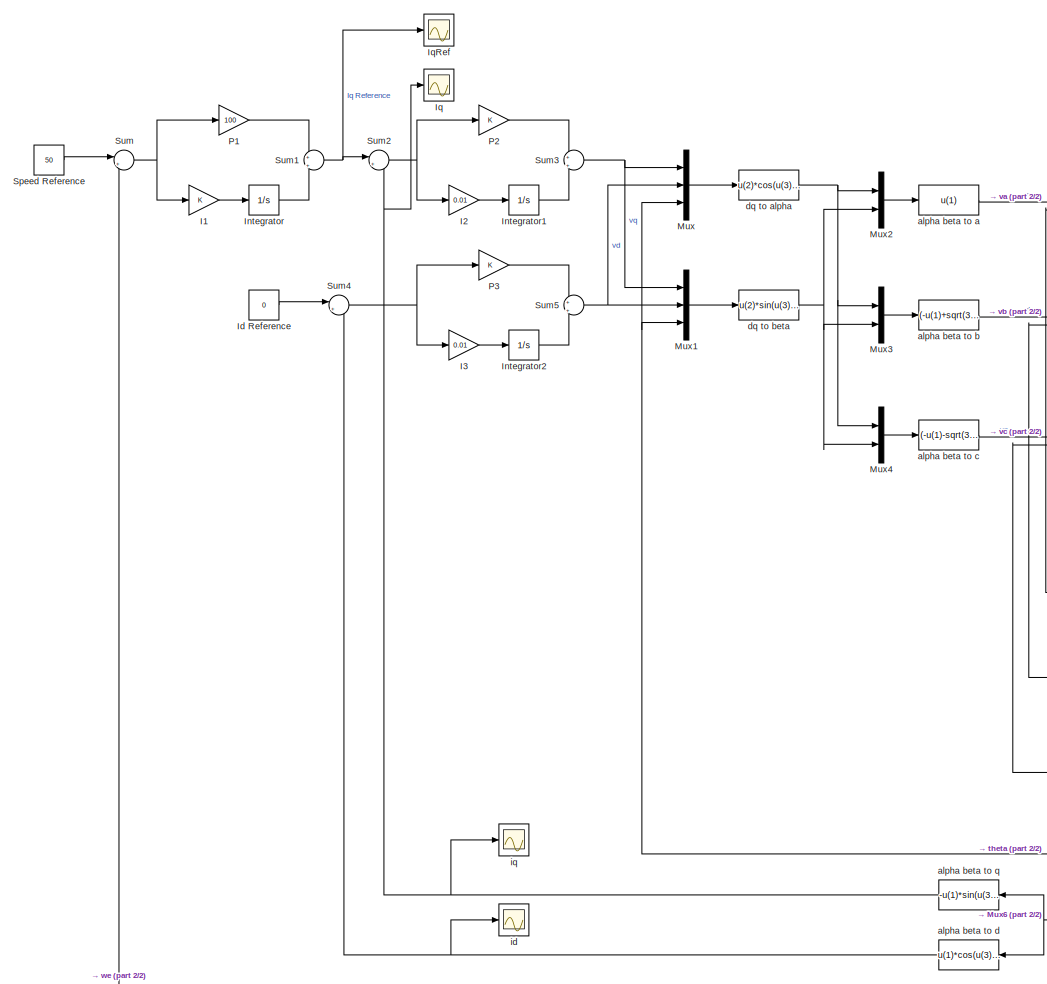
[diagram: root canvas - part 1/2, left side, full height]
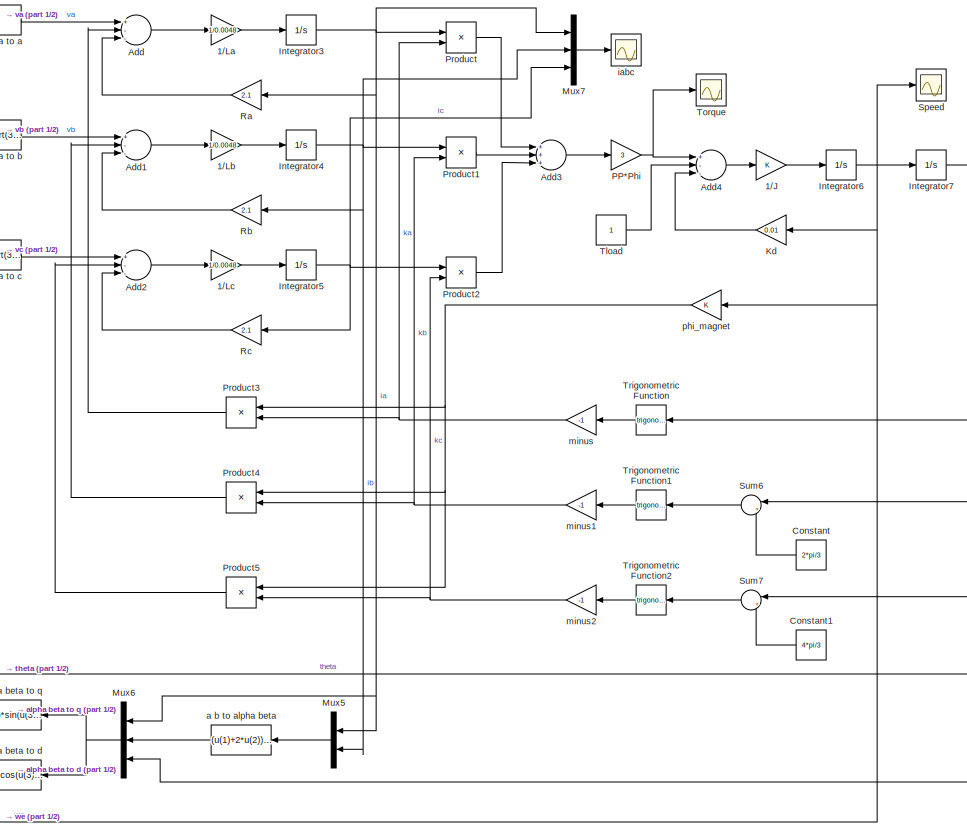
[diagram: root canvas - part 2/2, right side, full height]
MODEL slx_5b794c9c40d0
KIND model
CONFIG AbsTol = auto
CONFIG FixedStep = 1e-3
CONFIG MaxStep = auto
CONFIG MinStep = auto
CONFIG RelTol = 1e-3
CONFIG SampleTimeConstraint = Unconstrained
CONFIG Solver = ode4
CONFIG SolverMode = Auto
CONFIG SolverName = ode4
CONFIG StartTime = 0.0
CONFIG StopTime = 10.0
BLOCK [Gain] 1//J
  OutDataTypeStr = Inherit: Inherit via internal rule
  ParamDataTypeStr = Inherit: Inherit via internal rule
  SaturateOnIntegerOverflow = off
BLOCK [Gain] 1//La
  Gain = 1/0.0048
  OutDataTypeStr = Inherit: Inherit via internal rule
  ParamDataTypeStr = Inherit: Inherit via internal rule
  SaturateOnIntegerOverflow = off
BLOCK [Gain] 1//Lb
  Gain = 1/0.0048
  OutDataTypeStr = Inherit: Inherit via internal rule
  ParamDataTypeStr = Inherit: Inherit via internal rule
  SaturateOnIntegerOverflow = off
BLOCK [Gain] 1//Lc
  Gain = 1/0.0048
  OutDataTypeStr = Inherit: Inherit via internal rule
  ParamDataTypeStr = Inherit: Inherit via internal rule
  SaturateOnIntegerOverflow = off
BLOCK [Sum] Add
  InputSameDT = off
  Inputs = +--
  OutDataTypeStr = Inherit: Inherit via internal rule
  Ports = [3, 1]
  SaturateOnIntegerOverflow = off
BLOCK [Sum] Add1
  InputSameDT = off
  Inputs = +--
  OutDataTypeStr = Inherit: Inherit via internal rule
  Ports = [3, 1]
  SaturateOnIntegerOverflow = off
BLOCK [Sum] Add2
  InputSameDT = off
  Inputs = +--
  OutDataTypeStr = Inherit: Inherit via internal rule
  Ports = [3, 1]
  SaturateOnIntegerOverflow = off
BLOCK [Sum] Add3
  InputSameDT = off
  Inputs = +++
  OutDataTypeStr = Inherit: Inherit via internal rule
  Ports = [3, 1]
  SaturateOnIntegerOverflow = off
BLOCK [Sum] Add4
  InputSameDT = off
  Inputs = +--
  OutDataTypeStr = Inherit: Inherit via internal rule
  Ports = [3, 1]
  SaturateOnIntegerOverflow = off
BLOCK [Constant] Constant
  Value = 2*pi/3
BLOCK [Constant] Constant1
  Value = 4*pi/3
BLOCK [Gain] I1
  OutDataTypeStr = Inherit: Inherit via internal rule
  ParamDataTypeStr = Inherit: Inherit via internal rule
  SaturateOnIntegerOverflow = off
BLOCK [Gain] I2
  Gain = 0.01
  OutDataTypeStr = Inherit: Inherit via internal rule
  ParamDataTypeStr = Inherit: Inherit via internal rule
  SaturateOnIntegerOverflow = off
BLOCK [Gain] I3
  Gain = 0.01
  OutDataTypeStr = Inherit: Inherit via internal rule
  ParamDataTypeStr = Inherit: Inherit via internal rule
  SaturateOnIntegerOverflow = off
BLOCK [Constant] Id Reference
  Value = 0
BLOCK [Integrator] Integrator
  Ports = [1, 1]
BLOCK [Integrator] Integrator1
  Ports = [1, 1]
BLOCK [Integrator] Integrator2
  Ports = [1, 1]
BLOCK [Integrator] Integrator3
  Ports = [1, 1]
BLOCK [Integrator] Integrator4
  Ports = [1, 1]
BLOCK [Integrator] Integrator5
  Ports = [1, 1]
BLOCK [Integrator] Integrator6
  Ports = [1, 1]
BLOCK [Integrator] Integrator7
  Ports = [1, 1]
BLOCK [Scope] Iq
  Ports = [1]
  ScopeSpecificationString = C++SS(StrPVP('SaveName','ScopeData1'))
BLOCK [Scope] IqRef
  Ports = [1]
  ScopeSpecificationString = Simulink.scopes.TimeScopeBlockCfg('CurrentConfiguration', extmgr.ConfigurationSet(extmgr.Configuration('Core','General UI',true),extmgr.Configuration('Core','Source UI',true),extmgr.Configuration('Sources','WiredSimulink',true,'DataLoggingSaveFormat','Array','DataLoggingDecimation','1','DataLoggingDecimateData',true,'DataLoggingVariableName','ScopeData5'),extmgr.Configuration('Visuals','Time Domai...<+1688ch>
BLOCK [Gain] Kd
  Gain = 0.01
  OutDataTypeStr = Inherit: Inherit via internal rule
  ParamDataTypeStr = Inherit: Inherit via internal rule
  SaturateOnIntegerOverflow = off
BLOCK [Mux] Mux
  DisplayOption = bar
  Inputs = 3
  Ports = [3, 1]
BLOCK [Mux] Mux1
  DisplayOption = bar
  Inputs = 3
  Ports = [3, 1]
BLOCK [Mux] Mux2
  DisplayOption = bar
  Inputs = 2
  Ports = [2, 1]
BLOCK [Mux] Mux3
  DisplayOption = bar
  Inputs = 2
  Ports = [2, 1]
BLOCK [Mux] Mux4
  DisplayOption = bar
  Inputs = 2
  Ports = [2, 1]
BLOCK [Mux] Mux5
  DisplayOption = bar
  Inputs = 2
  Ports = [2, 1]
BLOCK [Mux] Mux6
  DisplayOption = bar
  Inputs = 3
  Ports = [3, 1]
BLOCK [Mux] Mux7
  DisplayOption = bar
  Inputs = 3
  Ports = [3, 1]
BLOCK [Gain] P1
  Gain = 100
  OutDataTypeStr = Inherit: Inherit via internal rule
  ParamDataTypeStr = Inherit: Inherit via internal rule
  SaturateOnIntegerOverflow = off
BLOCK [Gain] P2
  OutDataTypeStr = Inherit: Inherit via internal rule
  ParamDataTypeStr = Inherit: Inherit via internal rule
  SaturateOnIntegerOverflow = off
BLOCK [Gain] P3
  OutDataTypeStr = Inherit: Inherit via internal rule
  ParamDataTypeStr = Inherit: Inherit via internal rule
  SaturateOnIntegerOverflow = off
BLOCK [Gain] PP*Phi
  Gain = 3
  OutDataTypeStr = Inherit: Inherit via internal rule
  ParamDataTypeStr = Inherit: Inherit via internal rule
  SaturateOnIntegerOverflow = off
BLOCK [Product] Product
  InputSameDT = off
  OutDataTypeStr = Inherit: Inherit via internal rule
  Ports = [2, 1]
  RndMeth = Floor
  SaturateOnIntegerOverflow = off
BLOCK [Product] Product1
  InputSameDT = off
  OutDataTypeStr = Inherit: Inherit via internal rule
  Ports = [2, 1]
  RndMeth = Floor
  SaturateOnIntegerOverflow = off
BLOCK [Product] Product2
  InputSameDT = off
  OutDataTypeStr = Inherit: Inherit via internal rule
  Ports = [2, 1]
  RndMeth = Floor
  SaturateOnIntegerOverflow = off
BLOCK [Product] Product3
  InputSameDT = off
  OutDataTypeStr = Inherit: Inherit via internal rule
  Ports = [2, 1]
  RndMeth = Floor
  SaturateOnIntegerOverflow = off
BLOCK [Product] Product4
  InputSameDT = off
  OutDataTypeStr = Inherit: Inherit via internal rule
  Ports = [2, 1]
  RndMeth = Floor
  SaturateOnIntegerOverflow = off
BLOCK [Product] Product5
  InputSameDT = off
  OutDataTypeStr = Inherit: Inherit via internal rule
  Ports = [2, 1]
  RndMeth = Floor
  SaturateOnIntegerOverflow = off
BLOCK [Gain] Ra
  Gain = 2.1
  OutDataTypeStr = Inherit: Inherit via internal rule
  ParamDataTypeStr = Inherit: Inherit via internal rule
  SaturateOnIntegerOverflow = off
BLOCK [Gain] Rb
  Gain = 2.1
  OutDataTypeStr = Inherit: Inherit via internal rule
  ParamDataTypeStr = Inherit: Inherit via internal rule
  SaturateOnIntegerOverflow = off
BLOCK [Gain] Rc
  Gain = 2.1
  OutDataTypeStr = Inherit: Inherit via internal rule
  ParamDataTypeStr = Inherit: Inherit via internal rule
  SaturateOnIntegerOverflow = off
BLOCK [Scope] Speed
  Ports = [1]
  ScopeSpecificationString = Simulink.scopes.TimeScopeBlockCfg('CurrentConfiguration', extmgr.ConfigurationSet(extmgr.Configuration('Core','General UI',true),extmgr.Configuration('Core','Source UI',true),extmgr.Configuration('Sources','WiredSimulink',true,'DataLoggingSaveFormat','Array','DataLoggingDecimation','1','DataLoggingDecimateData',true),extmgr.Configuration('Visuals','Time Domain',true,'SerializedDisplays',{struct('M...<+1594ch>
BLOCK [Constant] Speed Reference
  Value = 50
BLOCK [Sum] Sum
  IconShape = round
  InputSameDT = off
  Inputs = |+-
  OutDataTypeStr = Inherit: Inherit via internal rule
  Ports = [2, 1]
  SaturateOnIntegerOverflow = off
BLOCK [Sum] Sum1
  IconShape = round
  InputSameDT = off
  Inputs = +|+
  OutDataTypeStr = Inherit: Inherit via internal rule
  Ports = [2, 1]
  SaturateOnIntegerOverflow = off
BLOCK [Sum] Sum2
  IconShape = round
  InputSameDT = off
  Inputs = |+-
  OutDataTypeStr = Inherit: Inherit via internal rule
  Ports = [2, 1]
  SaturateOnIntegerOverflow = off
BLOCK [Sum] Sum3
  IconShape = round
  InputSameDT = off
  Inputs = +|+
  OutDataTypeStr = Inherit: Inherit via internal rule
  Ports = [2, 1]
  SaturateOnIntegerOverflow = off
BLOCK [Sum] Sum4
  IconShape = round
  InputSameDT = off
  Inputs = |+-
  OutDataTypeStr = Inherit: Inherit via internal rule
  Ports = [2, 1]
  SaturateOnIntegerOverflow = off
BLOCK [Sum] Sum5
  IconShape = round
  InputSameDT = off
  Inputs = +|+
  OutDataTypeStr = Inherit: Inherit via internal rule
  Ports = [2, 1]
  SaturateOnIntegerOverflow = off
BLOCK [Sum] Sum6
  IconShape = round
  InputSameDT = off
  Inputs = |+-
  OutDataTypeStr = Inherit: Inherit via internal rule
  Ports = [2, 1]
  SaturateOnIntegerOverflow = off
BLOCK [Sum] Sum7
  IconShape = round
  InputSameDT = off
  Inputs = |+-
  OutDataTypeStr = Inherit: Inherit via internal rule
  Ports = [2, 1]
  SaturateOnIntegerOverflow = off
BLOCK [Constant] Tload
BLOCK [Scope] Torque
  Ports = [1]
  ScopeSpecificationString = C++SS(StrPVP('Location','[188, 365, 512, 604]'),StrPVP('Open','off'),MxPVP('AxesTitles',24,'struct(''axes1'',''%<SignalLabel>'')'),MxPVP('ScopeGraphics',28,'struct(''FigureColor'',''[0.5 0.5 0.5]'',''AxesColor'',''[0 0 0]'',''AxesTickColor'',''[1 1 1]'',''LineColors'',''[1 1 0;1 0 1;0 1 1;1 0 0;0 1 0;0 0 1]'',''LineStyles'',''-|-|-|-|-|-'',''LineWidths'',''[0.5 0.5 0.5 0.5 0.5 0.5]'',''MarkerStyle...<+252ch>
BLOCK [Trigonometry] Trigonometric Function
  Ports = [1, 1]
BLOCK [Trigonometry] Trigonometric Function1
  Ports = [1, 1]
BLOCK [Trigonometry] Trigonometric Function2
  Ports = [1, 1]
BLOCK [Fcn] a b to alpha beta
  Expr = (u(1)+2*u(2))/sqrt(3)
BLOCK [Fcn] alpha beta to a
  Expr = u(1)
BLOCK [Fcn] alpha beta to b
  Expr = (-u(1)+sqrt(3)*u(2))/2
BLOCK [Fcn] alpha beta to c
  Expr = (-u(1)-sqrt(3)*u(2))/2
BLOCK [Fcn] alpha beta to d
  Expr = u(1)*cos(u(3))+u(2)*sin(u(3))
BLOCK [Fcn] alpha beta to q
  Expr = -u(1)*sin(u(3))+u(2)*cos(u(3))
BLOCK [Fcn] dq to alpha
  Expr = u(2)*cos(u(3))-u(1)*sin(u(3))
BLOCK [Fcn] dq to beta
  Expr = u(2)*sin(u(3))+u(1)*cos(u(3))
BLOCK [Scope] iabc
  Ports = [1]
  ScopeSpecificationString = Simulink.scopes.TimeScopeBlockCfg('CurrentConfiguration', extmgr.ConfigurationSet(extmgr.Configuration('Core','General UI',true),extmgr.Configuration('Core','Source UI',true),extmgr.Configuration('Sources','WiredSimulink',true,'DataLoggingVariableName','ScopeData1','DataLoggingSaveFormat','Array','DataLoggingDecimation','1','DataLoggingDecimateData',true),extmgr.Configuration('Visuals','Time Domai...<+1661ch>
BLOCK [Scope] id
  Ports = [1]
  ScopeSpecificationString = C++SS(StrPVP('Location','[188, 365, 512, 604]'),StrPVP('Open','off'),StrPVP('ZoomMode','xonly'),MxPVP('AxesTitles',24,'struct(''axes1'',''%<SignalLabel>'')'),MxPVP('ScopeGraphics',28,'struct(''FigureColor'',''[0.5 0.5 0.5]'',''AxesColor'',''[0 0 0]'',''AxesTickColor'',''[1 1 1]'',''LineColors'',''[1 1 0;1 0 1;0 1 1;1 0 0;0 1 0;0 0 1]'',''LineStyles'',''-|-|-|-|-|-'',''LineWidths'',''[0.5 0.5 0.5 0...<+279ch>
BLOCK [Scope] iq
  Ports = [1]
  ScopeSpecificationString = C++SS(StrPVP('Location','[188, 365, 512, 604]'),StrPVP('Open','off'),StrPVP('ZoomMode','xonly'),MxPVP('AxesTitles',24,'struct(''axes1'',''%<SignalLabel>'')'),MxPVP('ScopeGraphics',28,'struct(''FigureColor'',''[0.5 0.5 0.5]'',''AxesColor'',''[0 0 0]'',''AxesTickColor'',''[1 1 1]'',''LineColors'',''[1 1 0;1 0 1;0 1 1;1 0 0;0 1 0;0 0 1]'',''LineStyles'',''-|-|-|-|-|-'',''LineWidths'',''[0.5 0.5 0.5 0...<+279ch>
BLOCK [Gain] minus
  Gain = -1
  OutDataTypeStr = Inherit: Inherit via internal rule
  ParamDataTypeStr = Inherit: Inherit via internal rule
  SaturateOnIntegerOverflow = off
BLOCK [Gain] minus1
  Gain = -1
  OutDataTypeStr = Inherit: Inherit via internal rule
  ParamDataTypeStr = Inherit: Inherit via internal rule
  SaturateOnIntegerOverflow = off
BLOCK [Gain] minus2
  Gain = -1
  OutDataTypeStr = Inherit: Inherit via internal rule
  ParamDataTypeStr = Inherit: Inherit via internal rule
  SaturateOnIntegerOverflow = off
BLOCK [Gain] phi_magnet
  OutDataTypeStr = Inherit: Inherit via internal rule
  ParamDataTypeStr = Inherit: Inherit via internal rule
  SaturateOnIntegerOverflow = off
LINE 1//J:1 -> Integrator6:1
LINE 1//La:1 -> Integrator3:1
LINE 1//Lb:1 -> Integrator4:1
LINE 1//Lc:1 -> Integrator5:1
LINE Add1:1 -> 1//Lb:1
LINE Add2:1 -> 1//Lc:1
LINE Add3:1 -> PP*Phi:1
LINE Add4:1 -> 1//J:1
LINE Add:1 -> 1//La:1
LINE Constant1:1 -> Sum7:2
LINE Constant:1 -> Sum6:2
LINE I1:1 -> Integrator:1
LINE I2:1 -> Integrator1:1
LINE I3:1 -> Integrator2:1
LINE Id Reference:1 -> Sum4:1
LINE Integrator1:1 -> Sum3:2
LINE Integrator2:1 -> Sum5:2
NET Integrator3:1 -> Mux5:1, Mux6:1, Mux7:1, Product:1, Ra:1
NET Integrator4:1 -> Mux5:2, Mux7:2, Product1:1, Rb:1
NET Integrator5:1 -> Mux7:3, Product2:1, Rc:1
NET Integrator6:1 -> Integrator7:1, Kd:1, Speed:1, Sum:2, phi_magnet:1
NET Integrator7:1 -> Mux1:3, Mux6:3, Mux:3, Sum6:1, Sum7:1, Trigonometric Function:1
LINE Integrator:1 -> Sum1:2
LINE Kd:1 -> Add4:3
LINE Mux1:1 -> dq to beta:1
LINE Mux2:1 -> alpha beta to a:1
LINE Mux3:1 -> alpha beta to b:1
LINE Mux4:1 -> alpha beta to c:1
LINE Mux5:1 -> a b to alpha beta:1
NET Mux6:1 -> alpha beta to d:1, alpha beta to q:1
LINE Mux7:1 -> iabc:1
LINE Mux:1 -> dq to alpha:1
LINE P1:1 -> Sum1:1
LINE P2:1 -> Sum3:1
LINE P3:1 -> Sum5:1
NET PP*Phi:1 -> Add4:1, Torque:1
LINE Product1:1 -> Add3:2
LINE Product2:1 -> Add3:3
LINE Product3:1 -> Add:2
LINE Product4:1 -> Add1:2
LINE Product5:1 -> Add2:2
LINE Product:1 -> Add3:1
LINE Ra:1 -> Add:3
LINE Rb:1 -> Add1:3
LINE Rc:1 -> Add2:3
LINE Speed Reference:1 -> Sum:1
NET Sum1:1 -> IqRef:1, Sum2:1
NET Sum2:1 -> I2:1, P2:1
NET Sum3:1 -> Mux1:1, Mux:1
NET Sum4:1 -> I3:1, P3:1
NET Sum5:1 -> Mux1:2, Mux:2
LINE Sum6:1 -> Trigonometric Function1:1
LINE Sum7:1 -> Trigonometric Function2:1
NET Sum:1 -> I1:1, P1:1
LINE Tload:1 -> Add4:2
LINE Trigonometric Function1:1 -> minus1:1
LINE Trigonometric Function2:1 -> minus2:1
LINE Trigonometric Function:1 -> minus:1
LINE a b to alpha beta:1 -> Mux6:2
LINE alpha beta to a:1 -> Add:1
LINE alpha beta to b:1 -> Add1:1
LINE alpha beta to c:1 -> Add2:1
NET alpha beta to d:1 -> Sum4:2, id:1
NET alpha beta to q:1 -> Iq:1, Sum2:2, iq:1
NET dq to alpha:1 -> Mux2:1, Mux3:1, Mux4:1
NET dq to beta:1 -> Mux2:2, Mux3:2, Mux4:2
NET minus1:1 -> Product1:2, Product4:2
NET minus2:1 -> Product2:2, Product5:2
NET minus:1 -> Product3:2, Product:2
NET phi_magnet:1 -> Product3:1, Product4:1, Product5:1
note: NET lines group one-source signal fan-out (src -> all destinations, sorted); 1:1 wires keep LINE
